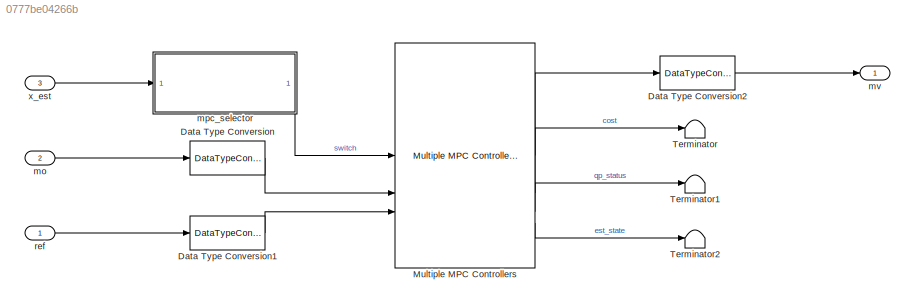
MODEL slx_0777be04266b
KIND model
BLOCK [DataTypeConversion] Data Type Conversion
  OutDataTypeStr = single
  RndMeth = Floor
  SaturateOnIntegerOverflow = off
BLOCK [DataTypeConversion] Data Type Conversion1
  OutDataTypeStr = single
  RndMeth = Floor
  SaturateOnIntegerOverflow = off
BLOCK [DataTypeConversion] Data Type Conversion2
  OutDataTypeStr = double
  RndMeth = Floor
  SaturateOnIntegerOverflow = off
BLOCK [Reference] Multiple MPC Controllers  REF=mpclib/Multiple MPC Controllers  (lib defined in mdl_ae329e0e0455)
  SourceBlock = mpclib/Multiple MPC Controllers
  SourceType = Multiple MPC
BLOCK [Terminator] Terminator
BLOCK [Terminator] Terminator1
BLOCK [Terminator] Terminator2
BLOCK [Inport] mo
  OutDataTypeStr = double
  Port = 2
  PortDimensions = 5
  SamplingMode = Sample based
  SignalType = real
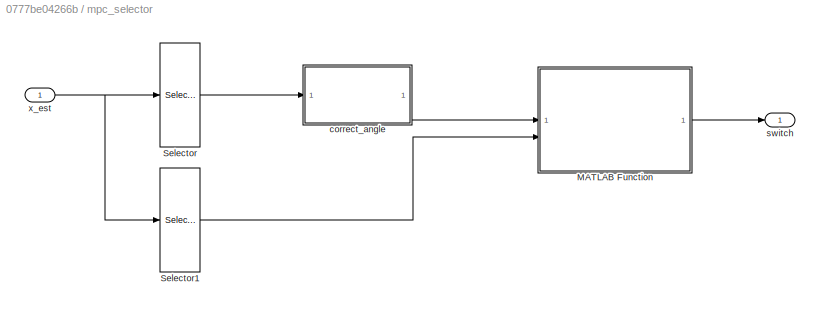
BLOCK [SubSystem] mpc_selector
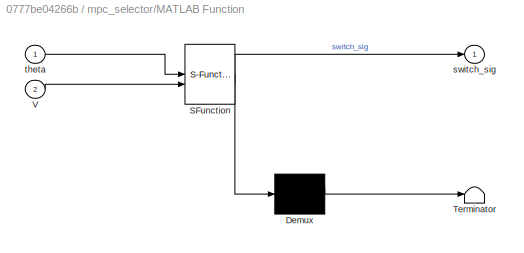
BLOCK [SubSystem] mpc_selector/MATLAB Function
  ErrorFcn = Stateflow.Translate.translate
  PermitHierarchicalResolution = ExplicitOnly
  SFBlockType = MATLAB Function
  TreatAsAtomicUnit = on
BLOCK [Demux] mpc_selector/MATLAB Function/ Demux 
  Outputs = 1
BLOCK [S-Function] mpc_selector/MATLAB Function/ SFunction 
  EnableBusSupport = off
  FunctionName = sf_sfun
  Parameters = op_pattern_mat
  PortCounts = [2 2]
  SFcnIsStateOwnerBlock = off
  SFunctionDeploymentMode = off
  Tag = Stateflow S-Function 2
BLOCK [Terminator] mpc_selector/MATLAB Function/ Terminator 
BLOCK [Inport] mpc_selector/MATLAB Function/V
  Port = 2
BLOCK [Outport] mpc_selector/MATLAB Function/switch_sig
BLOCK [Inport] mpc_selector/MATLAB Function/theta
BLOCK [Selector] mpc_selector/Selector
  IndexOptions = Index vector (dialog)
  Indices = [3]
  InputPortWidth = 6
  OutputSizes = 1
BLOCK [Selector] mpc_selector/Selector1
  IndexOptions = Index vector (dialog)
  Indices = [6]
  InputPortWidth = 6
  OutputSizes = 1
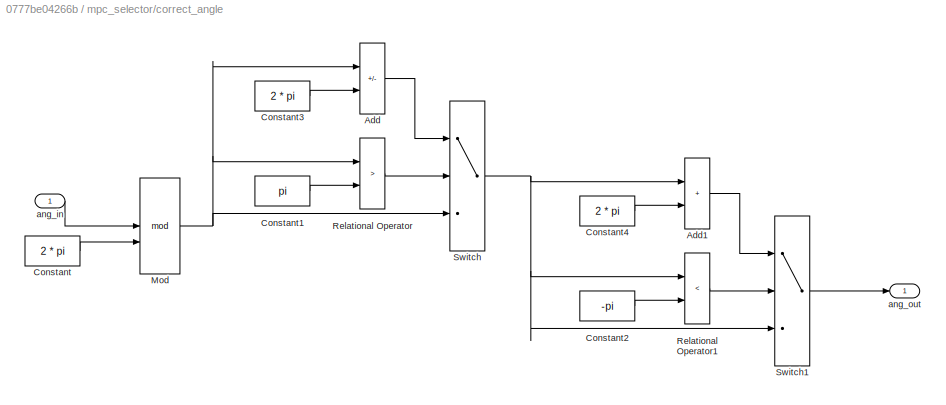
BLOCK [SubSystem] mpc_selector/correct_angle
BLOCK [Sum] mpc_selector/correct_angle/Add
  IconShape = rectangular
  Inputs = +-
BLOCK [Sum] mpc_selector/correct_angle/Add1
  IconShape = rectangular
BLOCK [Constant] mpc_selector/correct_angle/Constant
  Value = 2 * pi
BLOCK [Constant] mpc_selector/correct_angle/Constant1
  Value = pi
BLOCK [Constant] mpc_selector/correct_angle/Constant2
  Value = -pi
BLOCK [Constant] mpc_selector/correct_angle/Constant3
  Value = 2 * pi
BLOCK [Constant] mpc_selector/correct_angle/Constant4
  Value = 2 * pi
BLOCK [Math] mpc_selector/correct_angle/Mod
  Operator = mod
BLOCK [RelationalOperator] mpc_selector/correct_angle/Relational Operator
  InputSameDT = off
  Operator = >
  OutDataTypeStr = boolean
  RndMeth = Simplest
BLOCK [RelationalOperator] mpc_selector/correct_angle/Relational Operator1
  InputSameDT = off
  Operator = <
  OutDataTypeStr = boolean
  RndMeth = Simplest
BLOCK [Switch] mpc_selector/correct_angle/Switch
  Criteria = u2 ~= 0
  InputSameDT = off
  SaturateOnIntegerOverflow = off
BLOCK [Switch] mpc_selector/correct_angle/Switch1
  Criteria = u2 ~= 0
  InputSameDT = off
  SaturateOnIntegerOverflow = off
BLOCK [Inport] mpc_selector/correct_angle/ang_in
BLOCK [Outport] mpc_selector/correct_angle/ang_out
BLOCK [Outport] mpc_selector/switch
BLOCK [Inport] mpc_selector/x_est
BLOCK [Outport] mv
  OutDataTypeStr = double
  PortDimensions = 2
  SamplingMode = Sample based
  SignalType = real
BLOCK [Inport] ref
  OutDataTypeStr = double
  PortDimensions = 5
  SamplingMode = Sample based
  SignalType = real
BLOCK [Inport] x_est
  OutDataTypeStr = double
  Port = 3
  PortDimensions = 6
  SamplingMode = Sample based
  SignalType = real
LINE Data Type Conversion1:1 -> Multiple MPC Controllers:3
LINE Data Type Conversion2:1 -> mv:1
LINE Data Type Conversion:1 -> Multiple MPC Controllers:2
LINE Multiple MPC Controllers:1 -> Data Type Conversion2:1
LINE Multiple MPC Controllers:2 -> Terminator:1
LINE Multiple MPC Controllers:3 -> Terminator1:1
LINE Multiple MPC Controllers:4 -> Terminator2:1
LINE mo:1 -> Data Type Conversion:1
LINE mpc_selector/MATLAB Function:1 -> mpc_selector/switch:1
LINE mpc_selector/Selector1:1 -> mpc_selector/MATLAB Function:2
LINE mpc_selector/Selector:1 -> mpc_selector/correct_angle:1
LINE mpc_selector/correct_angle/Add1:1 -> mpc_selector/correct_angle/Switch1:1
LINE mpc_selector/correct_angle/Add:1 -> mpc_selector/correct_angle/Switch:1
LINE mpc_selector/correct_angle/Constant1:1 -> mpc_selector/correct_angle/Relational Operator:2
LINE mpc_selector/correct_angle/Constant2:1 -> mpc_selector/correct_angle/Relational Operator1:2
LINE mpc_selector/correct_angle/Constant3:1 -> mpc_selector/correct_angle/Add:2
LINE mpc_selector/correct_angle/Constant4:1 -> mpc_selector/correct_angle/Add1:2
LINE mpc_selector/correct_angle/Constant:1 -> mpc_selector/correct_angle/Mod:2
NET mpc_selector/correct_angle/Mod:1 -> mpc_selector/correct_angle/Add:1, mpc_selector/correct_angle/Relational Operator:1, mpc_selector/correct_angle/Switch:3
LINE mpc_selector/correct_angle/Relational Operator1:1 -> mpc_selector/correct_angle/Switch1:2
LINE mpc_selector/correct_angle/Relational Operator:1 -> mpc_selector/correct_angle/Switch:2
LINE mpc_selector/correct_angle/Switch1:1 -> mpc_selector/correct_angle/ang_out:1
NET mpc_selector/correct_angle/Switch:1 -> mpc_selector/correct_angle/Add1:1, mpc_selector/correct_angle/Relational Operator1:1, mpc_selector/correct_angle/Switch1:3
LINE mpc_selector/correct_angle/ang_in:1 -> mpc_selector/correct_angle/Mod:1
LINE mpc_selector/correct_angle:1 -> mpc_selector/MATLAB Function:1
NET mpc_selector/x_est:1 -> mpc_selector/Selector1:1, mpc_selector/Selector:1
LINE mpc_selector:1 -> Multiple MPC Controllers:1
LINE ref:1 -> Data Type Conversion1:1
LINE x_est:1 -> mpc_selector:1
note: NET lines group one-source signal fan-out (src -> all destinations, sorted); 1:1 wires keep LINE
CHART mpc_selector/MATLAB Function states=1 transitions=1
  STATE_LABEL 'eML_blk_kernel()'
  STATE_LABEL 'SCRIPT:\nfunction switch_sig = select_MPC(theta, V, op_pattern_mat)\n\ndist_vec = zeros(size(op_pattern_mat, 2), 1);\n\nfor i = 1:size(dist_vec, 1)\n    \n    theta_comp = theta - op_pattern_mat(1, i);\n    if (theta_comp > pi)\n        theta_comp = theta_comp - 2 * pi;\n    elseif (theta_comp < -pi)\n        theta_comp = theta_comp + 2 * pi;\n    end\n    \n    dist_vec(i) = theta_comp ^ 2 + (V - op_pattern_ma...<+75ch>'
CHART  states=0 transitions=0
